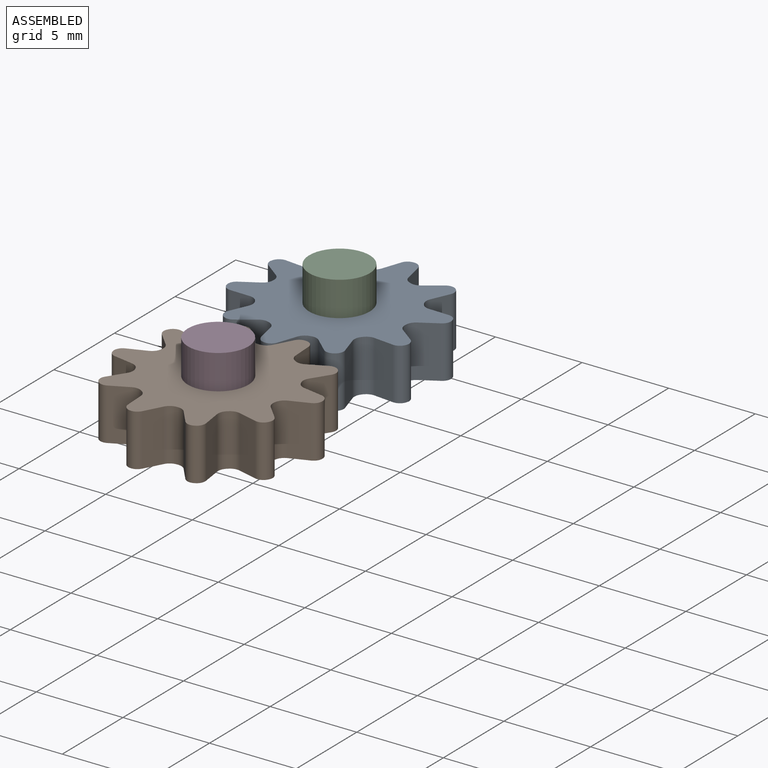
[diagram: assembled view]
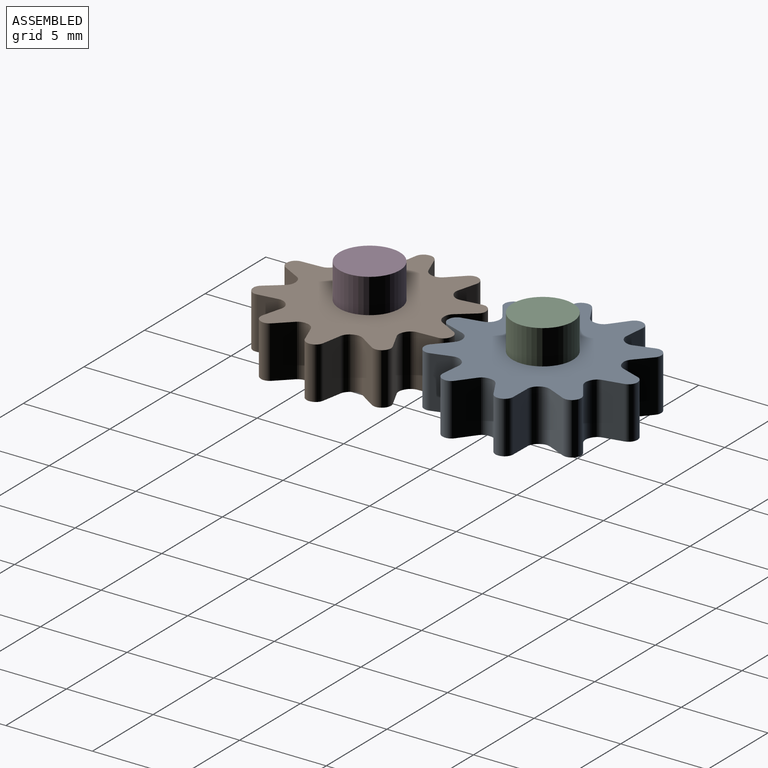
[diagram: assembled view, second angle]
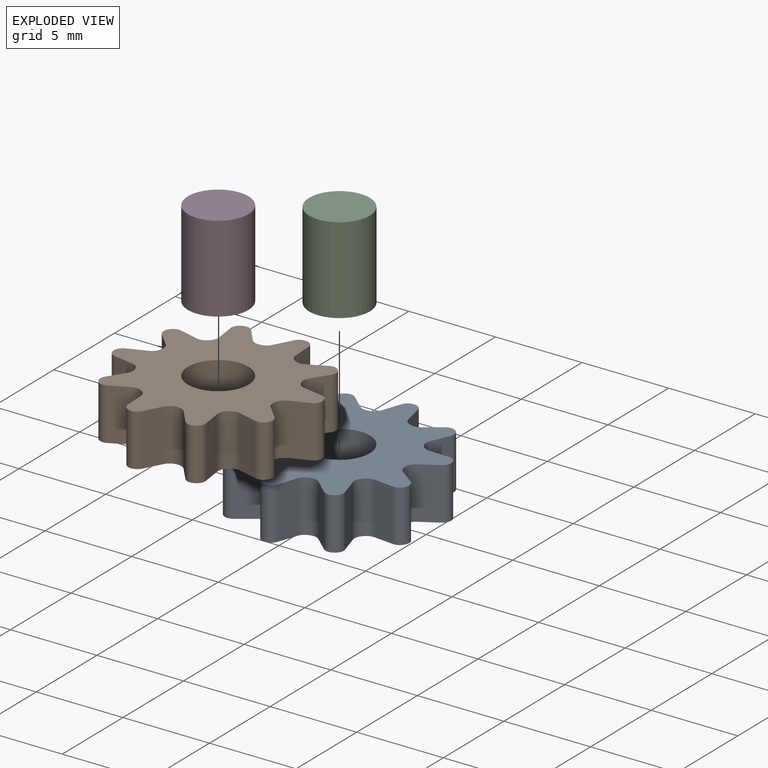
[diagram: exploded view]
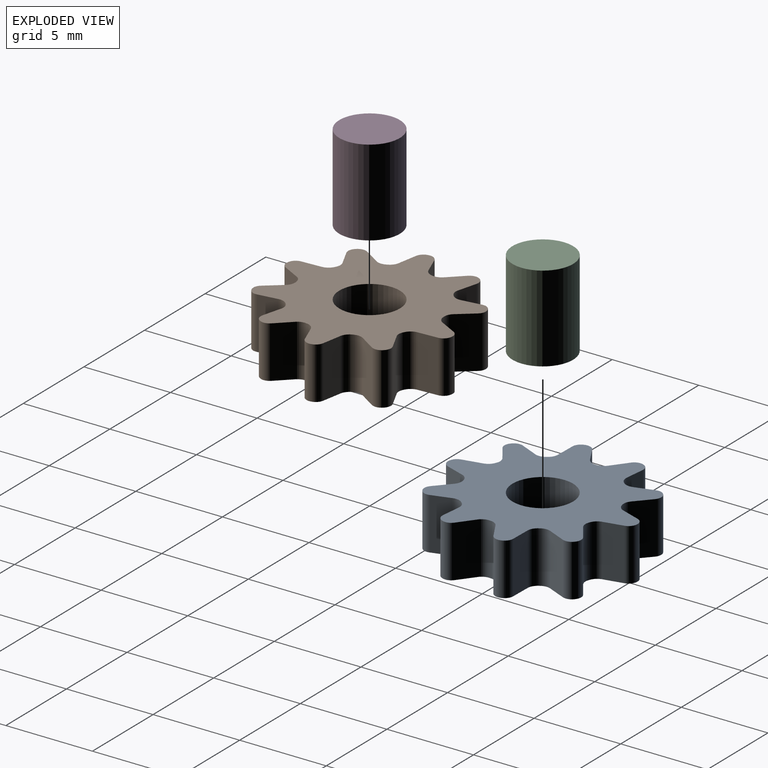
[diagram: exploded view, second angle]
ASSEMBLY  parts=4 mates=2
PART A: 83 faces, bbox 11.4x11x3 mm
  f0: plane 3x0.88mm, normal (0.76,0.65,0), area 3.5mm2, adj f41,f42,f44,f63
  f1: cylinder r=4mm len=3mm, axis (0,0,-1), area 0.2mm2, adj f41,f42,f63,f66
  f2: plane 3x1.1mm, normal (0.3,-0.95,0), area 3.5mm2, adj f41,f42,f45,f66
  f3: cylinder r=5.7mm len=3mm, axis (0,0,-1), area 0.1mm2, adj f41,f42,f45,f46
  f4: plane 3x1.12mm, normal (0.24,0.97,0), area 3.5mm2, adj f41,f42,f46,f65
  f5: cylinder r=4mm len=3mm, axis (0,0,-1), area 0.2mm2, adj f41,f42,f65,f68
  f6: plane 3x0.93mm, normal (0.81,-0.59,0), area 3.5mm2, adj f41,f42,f47,f68
  f7: cylinder r=5.7mm len=3mm, axis (0,0,-1), area 0.1mm2, adj f41,f42,f47,f48
  f8: plane 3x1.07mm, normal (-0.38,0.92,0), area 3.5mm2, adj f41,f42,f48,f67
  f9: cylinder r=4mm len=3mm, axis (0,0,-1), area 0.2mm2, adj f41,f42,f67,f70
  f10: plane 3x1.15mm, normal (1,-0.01,0), area 3.5mm2, adj f41,f42,f49,f70
  f11: cylinder r=5.7mm len=3mm, axis (0,0,-1), area 0.1mm2, adj f41,f42,f49,f50
  f12: plane 3x0.98mm, normal (-0.85,0.52,0), area 3.5mm2, adj f41,f42,f50,f69
  f13: cylinder r=4mm len=3mm, axis (0,0,-1), area 0.2mm2, adj f41,f42,f69,f72
  f14: plane 3x0.94mm, normal (0.81,0.58,0), area 3.5mm2, adj f41,f42,f51,f72
  f15: cylinder r=5.7mm len=3mm, axis (0,0,-1), area 0.1mm2, adj f41,f42,f51,f52
  f16: plane 3x1.15mm, normal (-1,-0.08,0), area 3.5mm2, adj f41,f42,f52,f71
  f17: cylinder r=4mm len=3mm, axis (0,0,-1), area 0.2mm2, adj f41,f42,f71,f74
  f18: plane 3x1.09mm, normal (0.32,0.95,0), area 3.5mm2, adj f41,f42,f53,f74
  f19: cylinder r=5.7mm len=3mm, axis (0,0,-1), area 0.1mm2, adj f41,f42,f53,f54
  f20: plane 3x0.88mm, normal (-0.76,-0.65,0), area 3.5mm2, adj f41,f42,f54,f73
  f21: cylinder r=4mm len=3mm, axis (0,0,-1), area 0.2mm2, adj f41,f42,f73,f76
  f22: plane 3x1.1mm, normal (-0.3,0.95,0), area 3.5mm2, adj f41,f42,f55,f76
  f23: cylinder r=5.7mm len=3mm, axis (0,0,-1), area 0.1mm2, adj f41,f42,f55,f56
  f24: plane 3x1.12mm, normal (-0.24,-0.97,0), area 3.5mm2, adj f41,f42,f56,f75
  f25: cylinder r=4mm len=3mm, axis (0,0,-1), area 0.2mm2, adj f41,f42,f75,f78
  f26: plane 3x0.93mm, normal (-0.81,0.59,0), area 3.5mm2, adj f41,f42,f57,f78
  f27: cylinder r=5.7mm len=3mm, axis (0,0,-1), area 0.1mm2, adj f41,f42,f57,f58
  f28: plane 3x1.07mm, normal (0.38,-0.92,0), area 3.5mm2, adj f41,f42,f58,f77
  f29: cylinder r=4mm len=3mm, axis (0,0,-1), area 0.2mm2, adj f41,f42,f77,f80
  f30: plane 3x1.15mm, normal (-1,0.01,0), area 3.5mm2, adj f41,f42,f59,f80
  f31: cylinder r=5.7mm len=3mm, axis (0,0,-1), area 0.1mm2, adj f41,f42,f59,f60
  f32: plane 3x0.98mm, normal (0.85,-0.52,0), area 3.5mm2, adj f41,f42,f60,f79
  f33: cylinder r=4mm len=3mm, axis (0,0,-1), area 0.2mm2, adj f41,f42,f79,f82
  f34: plane 3x0.94mm, normal (-0.81,-0.58,0), area 3.5mm2, adj f41,f42,f61,f82
  f35: cylinder r=5.7mm len=3mm, axis (0,0,-1), area 0.1mm2, adj f41,f42,f61,f62
  f36: plane 3x1.15mm, normal (1,0.08,0), area 3.5mm2, adj f41,f42,f62,f81
  f37: cylinder r=4mm len=3mm, axis (0,0,-1), area 0.2mm2, adj f41,f42,f64,f81
  f38: plane 3x1.09mm, normal (-0.32,-0.95,0), area 3.5mm2, adj f41,f42,f43,f64
  f39: cylinder r=5.7mm len=3mm, axis (0,0,-1), area 0.1mm2, adj f41,f42,f43,f44
  f40: cylinder r=1.75mm len=3.5mm, axis (0,0,-1), area 33mm2, adj f41,f42
  f41: plane 11.39x11.01mm, normal (0,0,1), area 62.6mm2, adj f0,f1,f2,f3,f4,f5,f6,f7
  f42: plane 11.39x11.01mm, normal (0,0,-1), area 62.6mm2, adj f0,f1,f2,f3,f4,f5,f6,f7
  f43: cylinder r=0.5mm len=3mm, axis (0,0,-1), area 1.9mm2, adj f38,f39,f41,f42
  f44: cylinder r=0.5mm len=3mm, axis (0,0,-1), area 1.9mm2, adj f0,f39,f41,f42
  f45: cylinder r=0.5mm len=3mm, axis (0,0,-1), area 1.9mm2, adj f2,f3,f41,f42
  f46: cylinder r=0.5mm len=3mm, axis (0,0,-1), area 1.9mm2, adj f3,f4,f41,f42
  f47: cylinder r=0.5mm len=3mm, axis (0,0,-1), area 1.9mm2, adj f6,f7,f41,f42
  f48: cylinder r=0.5mm len=3mm, axis (0,0,-1), area 1.9mm2, adj f7,f8,f41,f42
  f49: cylinder r=0.5mm len=3mm, axis (0,0,-1), area 1.9mm2, adj f10,f11,f41,f42
  f50: cylinder r=0.5mm len=3mm, axis (0,0,-1), area 1.9mm2, adj f11,f12,f41,f42
  f51: cylinder r=0.5mm len=3mm, axis (0,0,-1), area 1.9mm2, adj f14,f15,f41,f42
  f52: cylinder r=0.5mm len=3mm, axis (0,0,-1), area 1.9mm2, adj f15,f16,f41,f42
  f53: cylinder r=0.5mm len=3mm, axis (0,0,-1), area 1.9mm2, adj f18,f19,f41,f42
  f54: cylinder r=0.5mm len=3mm, axis (0,0,-1), area 1.9mm2, adj f19,f20,f41,f42
  f55: cylinder r=0.5mm len=3mm, axis (0,0,-1), area 1.9mm2, adj f22,f23,f41,f42
  f56: cylinder r=0.5mm len=3mm, axis (0,0,-1), area 1.9mm2, adj f23,f24,f41,f42
  f57: cylinder r=0.5mm len=3mm, axis (0,0,-1), area 1.9mm2, adj f26,f27,f41,f42
  f58: cylinder r=0.5mm len=3mm, axis (0,0,-1), area 1.9mm2, adj f27,f28,f41,f42
  f59: cylinder r=0.5mm len=3mm, axis (0,0,-1), area 1.9mm2, adj f30,f31,f41,f42
  f60: cylinder r=0.5mm len=3mm, axis (0,0,-1), area 1.9mm2, adj f31,f32,f41,f42
  f61: cylinder r=0.5mm len=3mm, axis (0,0,-1), area 1.9mm2, adj f34,f35,f41,f42
  f62: cylinder r=0.5mm len=3mm, axis (0,0,-1), area 1.9mm2, adj f35,f36,f41,f42
  f63: cylinder r=0.6mm len=3mm, axis (0,0,-1), area 1.8mm2, adj f0,f1,f41,f42
  f64: cylinder r=0.6mm len=3mm, axis (0,0,-1), area 1.8mm2, adj f37,f38,f41,f42
  f65: cylinder r=0.6mm len=3mm, axis (0,0,-1), area 1.8mm2, adj f4,f5,f41,f42
  f66: cylinder r=0.6mm len=3mm, axis (0,0,-1), area 1.8mm2, adj f1,f2,f41,f42
  f67: cylinder r=0.6mm len=3mm, axis (0,0,-1), area 1.8mm2, adj f8,f9,f41,f42
  f68: cylinder r=0.6mm len=3mm, axis (0,0,-1), area 1.8mm2, adj f5,f6,f41,f42
  f69: cylinder r=0.6mm len=3mm, axis (0,0,-1), area 1.8mm2, adj f12,f13,f41,f42
  f70: cylinder r=0.6mm len=3mm, axis (0,0,-1), area 1.8mm2, adj f9,f10,f41,f42
  f71: cylinder r=0.6mm len=3mm, axis (0,0,-1), area 1.8mm2, adj f16,f17,f41,f42
  f72: cylinder r=0.6mm len=3mm, axis (0,0,-1), area 1.8mm2, adj f13,f14,f41,f42
  f73: cylinder r=0.6mm len=3mm, axis (0,0,-1), area 1.8mm2, adj f20,f21,f41,f42
  f74: cylinder r=0.6mm len=3mm, axis (0,0,-1), area 1.8mm2, adj f17,f18,f41,f42
  f75: cylinder r=0.6mm len=3mm, axis (0,0,-1), area 1.8mm2, adj f24,f25,f41,f42
  f76: cylinder r=0.6mm len=3mm, axis (0,0,-1), area 1.8mm2, adj f21,f22,f41,f42
  f77: cylinder r=0.6mm len=3mm, axis (0,0,-1), area 1.8mm2, adj f28,f29,f41,f42
  f78: cylinder r=0.6mm len=3mm, axis (0,0,-1), area 1.8mm2, adj f25,f26,f41,f42
  f79: cylinder r=0.6mm len=3mm, axis (0,0,-1), area 1.8mm2, adj f32,f33,f41,f42
  f80: cylinder r=0.6mm len=3mm, axis (0,0,-1), area 1.8mm2, adj f29,f30,f41,f42
  f81: cylinder r=0.6mm len=3mm, axis (0,0,-1), area 1.8mm2, adj f36,f37,f41,f42
  f82: cylinder r=0.6mm len=3mm, axis (0,0,-1), area 1.8mm2, adj f33,f34,f41,f42
PART B: 83 faces, bbox 10.9x11.4x3 mm
  f0: plane 3x1.08mm, normal (-0.94,-0.35,0), area 3.5mm2, adj f41,f42,f44,f63
  f1: cylinder r=4mm len=3mm, axis (0,0,-1), area 0.2mm2, adj f41,f42,f63,f66
  f2: plane 3x1.15mm, normal (0.04,1,0), area 3.5mm2, adj f41,f42,f45,f66
  f3: cylinder r=5.7mm len=3mm, axis (0,0,-1), area 0.1mm2, adj f41,f42,f45,f46
  f4: plane 3x0.96mm, normal (-0.55,-0.83,0), area 3.5mm2, adj f41,f42,f46,f65
  f5: cylinder r=4mm len=3mm, axis (0,0,-1), area 0.2mm2, adj f41,f42,f65,f68
  f6: plane 3x0.96mm, normal (-0.55,0.83,0), area 3.5mm2, adj f41,f42,f47,f68
  f7: cylinder r=5.7mm len=3mm, axis (0,0,-1), area 0.1mm2, adj f41,f42,f47,f48
  f8: plane 3x1.15mm, normal (0.04,-1,0), area 3.5mm2, adj f41,f42,f48,f67
  f9: cylinder r=4mm len=3mm, axis (0,0,-1), area 0.2mm2, adj f41,f42,f67,f70
  f10: plane 3x1.08mm, normal (-0.94,0.35,0), area 3.5mm2, adj f41,f42,f49,f70
  f11: cylinder r=5.7mm len=3mm, axis (0,0,-1), area 0.1mm2, adj f41,f42,f49,f50
  f12: plane 3x0.9mm, normal (0.62,-0.78,0), area 3.5mm2, adj f41,f42,f50,f69
  f13: cylinder r=4mm len=3mm, axis (0,0,-1), area 0.2mm2, adj f41,f42,f69,f72
  f14: plane 3x1.11mm, normal (-0.96,-0.27,0), area 3.5mm2, adj f41,f42,f51,f72
  f15: cylinder r=5.7mm len=3mm, axis (0,0,-1), area 0.1mm2, adj f41,f42,f51,f52
  f16: plane 3x1.11mm, normal (0.96,-0.27,0), area 3.5mm2, adj f41,f42,f52,f71
  f17: cylinder r=4mm len=3mm, axis (0,0,-1), area 0.2mm2, adj f41,f42,f71,f74
  f18: plane 3x0.9mm, normal (-0.62,-0.78,0), area 3.5mm2, adj f41,f42,f53,f74
  f19: cylinder r=5.7mm len=3mm, axis (0,0,-1), area 0.1mm2, adj f41,f42,f53,f54
  f20: plane 3x1.08mm, normal (0.94,0.35,0), area 3.5mm2, adj f41,f42,f54,f73
  f21: cylinder r=4mm len=3mm, axis (0,0,-1), area 0.2mm2, adj f41,f42,f73,f76
  f22: plane 3x1.15mm, normal (-0.04,-1,0), area 3.5mm2, adj f41,f42,f55,f76
  f23: cylinder r=5.7mm len=3mm, axis (0,0,-1), area 0.1mm2, adj f41,f42,f55,f56
  f24: plane 3x0.96mm, normal (0.55,0.83,0), area 3.5mm2, adj f41,f42,f56,f75
  f25: cylinder r=4mm len=3mm, axis (0,0,-1), area 0.2mm2, adj f41,f42,f75,f78
  f26: plane 3x0.96mm, normal (0.55,-0.83,0), area 3.5mm2, adj f41,f42,f57,f78
  f27: cylinder r=5.7mm len=3mm, axis (0,0,-1), area 0.1mm2, adj f41,f42,f57,f58
  f28: plane 3x1.15mm, normal (-0.04,1,0), area 3.5mm2, adj f41,f42,f58,f77
  f29: cylinder r=4mm len=3mm, axis (0,0,-1), area 0.2mm2, adj f41,f42,f77,f80
  f30: plane 3x1.08mm, normal (0.94,-0.35,0), area 3.5mm2, adj f41,f42,f59,f80
  f31: cylinder r=5.7mm len=3mm, axis (0,0,-1), area 0.1mm2, adj f41,f42,f59,f60
  f32: plane 3x0.9mm, normal (-0.62,0.78,0), area 3.5mm2, adj f41,f42,f60,f79
  f33: cylinder r=4mm len=3mm, axis (0,0,-1), area 0.2mm2, adj f41,f42,f79,f82
  f34: plane 3x1.11mm, normal (0.96,0.27,0), area 3.5mm2, adj f41,f42,f61,f82
  f35: cylinder r=5.7mm len=3mm, axis (0,0,-1), area 0.1mm2, adj f41,f42,f61,f62
  f36: plane 3x1.11mm, normal (-0.96,0.27,0), area 3.5mm2, adj f41,f42,f62,f81
  f37: cylinder r=4mm len=3mm, axis (0,0,-1), area 0.2mm2, adj f41,f42,f64,f81
  f38: plane 3x0.9mm, normal (0.62,0.78,0), area 3.5mm2, adj f41,f42,f43,f64
  f39: cylinder r=5.7mm len=3mm, axis (0,0,-1), area 0.1mm2, adj f41,f42,f43,f44
  f40: cylinder r=1.75mm len=3.5mm, axis (0,0,-1), area 33mm2, adj f41,f42
  f41: plane 11.4x10.9mm, normal (0,0,1), area 62.6mm2, adj f0,f1,f2,f3,f4,f5,f6,f7
  f42: plane 11.4x10.9mm, normal (0,0,-1), area 62.6mm2, adj f0,f1,f2,f3,f4,f5,f6,f7
  f43: cylinder r=0.5mm len=3mm, axis (0,0,-1), area 1.9mm2, adj f38,f39,f41,f42
  f44: cylinder r=0.5mm len=3mm, axis (0,0,-1), area 1.9mm2, adj f0,f39,f41,f42
  f45: cylinder r=0.5mm len=3mm, axis (0,0,-1), area 1.9mm2, adj f2,f3,f41,f42
  f46: cylinder r=0.5mm len=3mm, axis (0,0,-1), area 1.9mm2, adj f3,f4,f41,f42
  f47: cylinder r=0.5mm len=3mm, axis (0,0,-1), area 1.9mm2, adj f6,f7,f41,f42
  f48: cylinder r=0.5mm len=3mm, axis (0,0,-1), area 1.9mm2, adj f7,f8,f41,f42
  f49: cylinder r=0.5mm len=3mm, axis (0,0,-1), area 1.9mm2, adj f10,f11,f41,f42
  f50: cylinder r=0.5mm len=3mm, axis (0,0,-1), area 1.9mm2, adj f11,f12,f41,f42
  f51: cylinder r=0.5mm len=3mm, axis (0,0,-1), area 1.9mm2, adj f14,f15,f41,f42
  f52: cylinder r=0.5mm len=3mm, axis (0,0,-1), area 1.9mm2, adj f15,f16,f41,f42
  f53: cylinder r=0.5mm len=3mm, axis (0,0,-1), area 1.9mm2, adj f18,f19,f41,f42
  f54: cylinder r=0.5mm len=3mm, axis (0,0,-1), area 1.9mm2, adj f19,f20,f41,f42
  f55: cylinder r=0.5mm len=3mm, axis (0,0,-1), area 1.9mm2, adj f22,f23,f41,f42
  f56: cylinder r=0.5mm len=3mm, axis (0,0,-1), area 1.9mm2, adj f23,f24,f41,f42
  f57: cylinder r=0.5mm len=3mm, axis (0,0,-1), area 1.9mm2, adj f26,f27,f41,f42
  f58: cylinder r=0.5mm len=3mm, axis (0,0,-1), area 1.9mm2, adj f27,f28,f41,f42
  f59: cylinder r=0.5mm len=3mm, axis (0,0,-1), area 1.9mm2, adj f30,f31,f41,f42
  f60: cylinder r=0.5mm len=3mm, axis (0,0,-1), area 1.9mm2, adj f31,f32,f41,f42
  f61: cylinder r=0.5mm len=3mm, axis (0,0,-1), area 1.9mm2, adj f34,f35,f41,f42
  f62: cylinder r=0.5mm len=3mm, axis (0,0,-1), area 1.9mm2, adj f35,f36,f41,f42
  f63: cylinder r=0.6mm len=3mm, axis (0,0,-1), area 1.8mm2, adj f0,f1,f41,f42
  f64: cylinder r=0.6mm len=3mm, axis (0,0,-1), area 1.8mm2, adj f37,f38,f41,f42
  f65: cylinder r=0.6mm len=3mm, axis (0,0,-1), area 1.8mm2, adj f4,f5,f41,f42
  f66: cylinder r=0.6mm len=3mm, axis (0,0,-1), area 1.8mm2, adj f1,f2,f41,f42
  f67: cylinder r=0.6mm len=3mm, axis (0,0,-1), area 1.8mm2, adj f8,f9,f41,f42
  f68: cylinder r=0.6mm len=3mm, axis (0,0,-1), area 1.8mm2, adj f5,f6,f41,f42
  f69: cylinder r=0.6mm len=3mm, axis (0,0,-1), area 1.8mm2, adj f12,f13,f41,f42
  f70: cylinder r=0.6mm len=3mm, axis (0,0,-1), area 1.8mm2, adj f9,f10,f41,f42
  f71: cylinder r=0.6mm len=3mm, axis (0,0,-1), area 1.8mm2, adj f16,f17,f41,f42
  f72: cylinder r=0.6mm len=3mm, axis (0,0,-1), area 1.8mm2, adj f13,f14,f41,f42
  f73: cylinder r=0.6mm len=3mm, axis (0,0,-1), area 1.8mm2, adj f20,f21,f41,f42
  f74: cylinder r=0.6mm len=3mm, axis (0,0,-1), area 1.8mm2, adj f17,f18,f41,f42
  f75: cylinder r=0.6mm len=3mm, axis (0,0,-1), area 1.8mm2, adj f24,f25,f41,f42
  f76: cylinder r=0.6mm len=3mm, axis (0,0,-1), area 1.8mm2, adj f21,f22,f41,f42
  f77: cylinder r=0.6mm len=3mm, axis (0,0,-1), area 1.8mm2, adj f28,f29,f41,f42
  f78: cylinder r=0.6mm len=3mm, axis (0,0,-1), area 1.8mm2, adj f25,f26,f41,f42
  f79: cylinder r=0.6mm len=3mm, axis (0,0,-1), area 1.8mm2, adj f32,f33,f41,f42
  f80: cylinder r=0.6mm len=3mm, axis (0,0,-1), area 1.8mm2, adj f29,f30,f41,f42
  f81: cylinder r=0.6mm len=3mm, axis (0,0,-1), area 1.8mm2, adj f36,f37,f41,f42
  f82: cylinder r=0.6mm len=3mm, axis (0,0,-1), area 1.8mm2, adj f33,f34,f41,f42
PART C: 3 faces, bbox 3.5x3.5x5 mm
  f0: cylinder r=1.75mm len=5mm, axis (0,0,-1), area 55mm2, adj f1,f2
  f1: plane 3.5x3.5mm, normal (0,0,1), area 9.6mm2, adj f0
  f2: plane 3.5x3.5mm, normal (0,0,-1), area 9.6mm2, adj f0
PART D: 3 faces, bbox 3.5x3.5x5 mm
  f0: cylinder r=1.75mm len=5mm, axis (0,0,-1), area 55mm2, adj f1,f2
  f1: plane 3.5x3.5mm, normal (0,0,1), area 9.6mm2, adj f0
  f2: plane 3.5x3.5mm, normal (0,0,-1), area 9.6mm2, adj f0
PLACE A rot(axis=(0,0,1),12.5deg) t=(2.17,0.24,0)mm
PLACE B rot(axis=(0,0,-1),12.5deg) t=(0,0,0)mm
PLACE C at identity fixed
PLACE D at identity fixed
MATE revolute B.f1 <-> D.f0  axis (0,0,-1) through (0,0,0)mm
MATE revolute C.f0 <-> A.f1  axis (0,0,-1) through (0,10,0)mm
